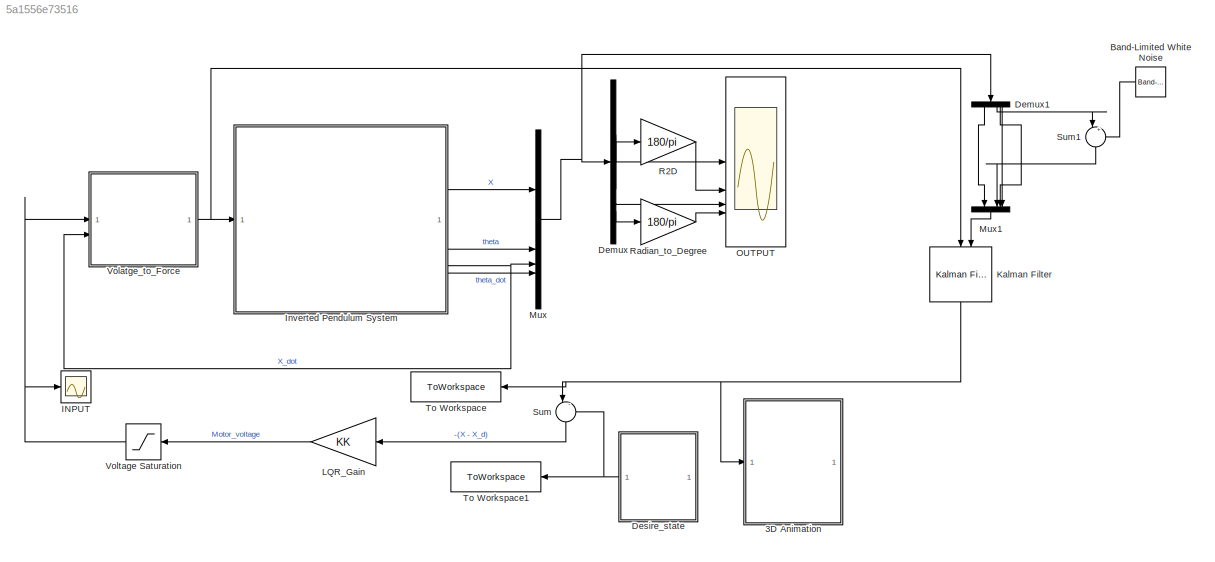
MODEL slx_5a1556e73516
KIND model
CONFIG AbsTol = auto
CONFIG EnableMultiTasking = off
CONFIG FixedStep = 0.01
CONFIG MaxStep = auto
CONFIG MinStep = auto
CONFIG RelTol = 1e-3
CONFIG SampleTimeConstraint = Unconstrained
CONFIG SolverName = FixedStepAuto
CONFIG StartTime = 0.0
CONFIG StopTime = 300
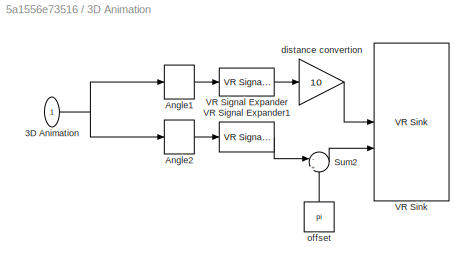
BLOCK [SubSystem] 3D Animation
BLOCK [Inport] 3D Animation/3D Animation
BLOCK [Selector] 3D Animation/Angle1
  IndexOptions = Index vector (dialog)
  Indices = [1]
  InputPortWidth = 4
  OutputSizes = 1
BLOCK [Selector] 3D Animation/Angle2
  IndexOptions = Index vector (dialog)
  Indices = [2]
  InputPortWidth = 4
  OutputSizes = 1
BLOCK [Sum] 3D Animation/Sum2
  Inputs = -|+
BLOCK [Reference] 3D Animation/VR Signal Expander  REF=vrlib/VR Signal Expander
  SourceBlock = vrlib/VR Signal Expander
  SourceType = VR Signal Expander
BLOCK [Reference] 3D Animation/VR Signal Expander1  REF=vrlib/VR Signal Expander
  SourceBlock = vrlib/VR Signal Expander
  SourceType = VR Signal Expander
BLOCK [Reference] 3D Animation/VR Sink  REF=vrlib/VR Sink
  InstantiateOnLoad = on
  SourceBlock = vrlib/VR Sink
  SourceType = Virtual Reality Sink
BLOCK [Gain] 3D Animation/distance convertion
  Gain = 10
BLOCK [Constant] 3D Animation/offset
  NameLocation = right
  Value = pi
BLOCK [Reference] Band-Limited White Noise  REF=simulink/Sources/Band-Limited
White Noise
  SourceBlock = simulink/Sources/Band-Limited\nWhite Noise
  SourceType = Band-Limited White Noise.
BLOCK [Demux] Demux
BLOCK [Demux] Demux1
  NameLocation = left
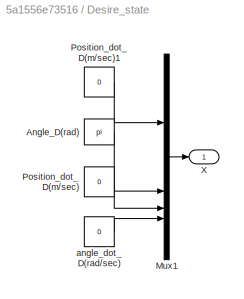
BLOCK [SubSystem] Desire_state
  NameLocation = top
BLOCK [Constant] Desire_state/Angle_D(rad)
  Value = pi
BLOCK [Mux] Desire_state/Mux1
  DisplayOption = bar
BLOCK [Constant] Desire_state/Position_dot_D(m//sec)
  Value = 0
BLOCK [Constant] Desire_state/Position_dot_D(m//sec)1
  Value = 0
BLOCK [Outport] Desire_state/X
  VectorParamsAs1DForOutWhenUnconnected = off
BLOCK [Constant] Desire_state/angle_dot_D(rad//sec)
  Value = 0
BLOCK [Scope] INPUT
  Floating = off
  NumInputPorts = 1
  ScopeSpecificationString = Simulink.scopes.TimeScopeBlockCfg('CurrentConfiguration', extmgr.ConfigurationSet(extmgr.Configuration('Core','General UI',true),extmgr.Configuration('Core','Source UI',true),extmgr.Configuration('Sources','WiredSimulink',true),extmgr.Configuration('Visuals','Time Domain',true,'SerializedDisplays',{struct('MinYLimReal','-15.00000','MaxYLimReal','15.00000','YLabelReal','','MinYLimMag','0.00000','Ma...<+1345ch>
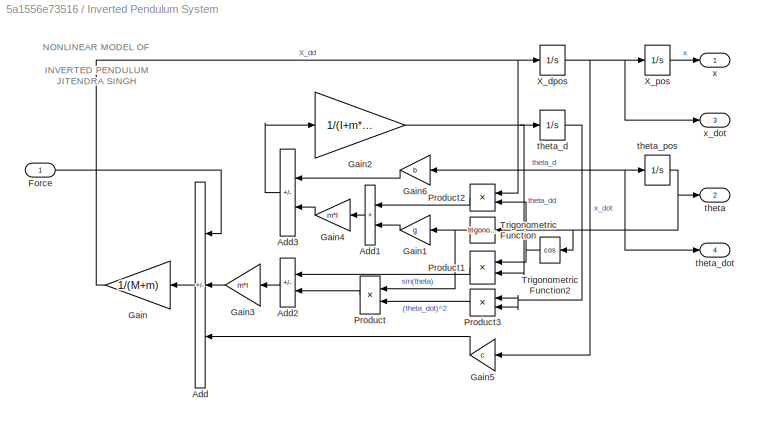
BLOCK [SubSystem] Inverted Pendulum System
BLOCK [Sum] Inverted Pendulum System/Add
  IconShape = rectangular
  Inputs = ++-
  NameLocation = top
BLOCK [Sum] Inverted Pendulum System/Add1
  IconShape = rectangular
  NameLocation = top
BLOCK [Sum] Inverted Pendulum System/Add2
  IconShape = rectangular
  Inputs = -+
  NameLocation = top
BLOCK [Sum] Inverted Pendulum System/Add3
  IconShape = rectangular
  Inputs = --
  NameLocation = top
BLOCK [Inport] Inverted Pendulum System/Force
BLOCK [Gain] Inverted Pendulum System/Gain
  Gain = 1/(M+m)
  NameLocation = top
BLOCK [Gain] Inverted Pendulum System/Gain1
  Gain = g
  NameLocation = top
BLOCK [Gain] Inverted Pendulum System/Gain2
  Gain = 1/(I+m*(l^2))
BLOCK [Gain] Inverted Pendulum System/Gain3
  Gain = m*l
  NameLocation = top
BLOCK [Gain] Inverted Pendulum System/Gain4
  Gain = m*l
  NameLocation = top
BLOCK [Gain] Inverted Pendulum System/Gain5
  Gain = c
  NameLocation = top
BLOCK [Gain] Inverted Pendulum System/Gain6
  Gain = b
  NameLocation = top
BLOCK [Product] Inverted Pendulum System/Product
  NameLocation = top
BLOCK [Product] Inverted Pendulum System/Product1
  NameLocation = top
BLOCK [Product] Inverted Pendulum System/Product2
  NameLocation = top
BLOCK [Product] Inverted Pendulum System/Product3
  NameLocation = top
BLOCK [Trigonometry] Inverted Pendulum System/Trigonometric Function
  NameLocation = top
BLOCK [Trigonometry] Inverted Pendulum System/Trigonometric Function2
  NameLocation = top
  Operator = cos
BLOCK [Integrator] Inverted Pendulum System/X_dpos
BLOCK [Integrator] Inverted Pendulum System/X_pos
  InitialCondition = 0.2
BLOCK [Outport] Inverted Pendulum System/theta
  Port = 2
  VectorParamsAs1DForOutWhenUnconnected = off
BLOCK [Integrator] Inverted Pendulum System/theta_d
BLOCK [Outport] Inverted Pendulum System/theta_dot
  Port = 4
  VectorParamsAs1DForOutWhenUnconnected = off
BLOCK [Integrator] Inverted Pendulum System/theta_pos
  InitialCondition = 160*(pi/180)
BLOCK [Outport] Inverted Pendulum System/x
  VectorParamsAs1DForOutWhenUnconnected = off
BLOCK [Outport] Inverted Pendulum System/x_dot
  Port = 3
  VectorParamsAs1DForOutWhenUnconnected = off
BLOCK [Reference] Kalman Filter  REF=ctrlSharedLib/Kalman Filter
  LibrarySourceBlock = cstblocks/State Estimation/Kalman Filter
  NameLocation = left
  SourceBlock = ctrlSharedLib/Kalman Filter
  SourceType = ctrlKalmanFilter
BLOCK [Gain] LQR_Gain
  Gain = KK
  Multiplication = Matrix(K*u)
  NameLocation = top
BLOCK [Mux] Mux
  DisplayOption = bar
BLOCK [Mux] Mux1
  DisplayOption = bar
  NameLocation = left
BLOCK [Scope] OUTPUT
  Floating = off
  NumInputPorts = 4
  ScopeSpecificationString = Simulink.scopes.TimeScopeBlockCfg('CurrentConfiguration', extmgr.ConfigurationSet(extmgr.Configuration('Core','General UI',true,'FigureColor',[1 1 1]),extmgr.Configuration('Core','Source UI',true),extmgr.Configuration('Sources','WiredSimulink',true,'DataLoggingVariableName','ScopeData1'),extmgr.Configuration('Visuals','Time Domain',true,'SerializedDisplays',{struct('MinYLimReal','-1.27595','MaxYLi...<+3981ch>
BLOCK [Gain] R2D
  Gain = 180/pi
BLOCK [Gain] Radian_to_Degree
  Gain = 180/pi
BLOCK [Sum] Sum
  Inputs = |-+
  NameLocation = left
BLOCK [Sum] Sum1
  Inputs = |++
  NameLocation = left
BLOCK [ToWorkspace] To Workspace
  FixptAsFi = on
  MaxDataPoints = inf
  SampleTime = -1
  SaveFormat = Timeseries
  VariableName = realState
BLOCK [ToWorkspace] To Workspace1
  FixptAsFi = on
  MaxDataPoints = inf
  SampleTime = -1
  SaveFormat = Timeseries
  VariableName = desiredState
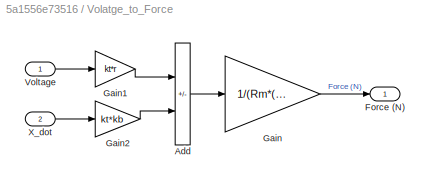
BLOCK [SubSystem] Volatge_to_Force
BLOCK [Sum] Volatge_to_Force/Add
  IconShape = rectangular
  Inputs = +-
BLOCK [Outport] Volatge_to_Force/Force (N)
  VectorParamsAs1DForOutWhenUnconnected = off
BLOCK [Gain] Volatge_to_Force/Gain
  Gain = 1/(Rm*(r)^2)
BLOCK [Gain] Volatge_to_Force/Gain1
  Gain = kt*r
BLOCK [Gain] Volatge_to_Force/Gain2
  Gain = kt*kb
BLOCK [Inport] Volatge_to_Force/Voltage
  NameLocation = top
BLOCK [Inport] Volatge_to_Force/X_dot
  Port = 2
BLOCK [Saturate] Voltage Saturation
  LowerLimit = -12
  NameLocation = top
  UpperLimit = 12
ANNOTATION Inverted Pendulum System: NONLINEAR MODEL OF INVERTED PENDULUM JITENDRA SINGH
NET 3D Animation/3D Animation:1 -> 3D Animation/Angle1:1, 3D Animation/Angle2:1
LINE 3D Animation/Angle1:1 -> 3D Animation/VR Signal Expander:1
LINE 3D Animation/Angle2:1 -> 3D Animation/VR Signal Expander1:1
LINE 3D Animation/Sum2:1 -> 3D Animation/VR Sink:2
LINE 3D Animation/VR Signal Expander1:1 -> 3D Animation/Sum2:1
LINE 3D Animation/VR Signal Expander:1 -> 3D Animation/distance convertion:1
LINE 3D Animation/distance convertion:1 -> 3D Animation/VR Sink:1
LINE 3D Animation/offset:1 -> 3D Animation/Sum2:2
LINE Band-Limited White Noise:1 -> Sum1:2
LINE Demux1:1 -> Mux1:1
LINE Demux1:2 -> Sum1:1
LINE Demux1:3 -> Mux1:3
LINE Demux1:4 -> Mux1:4
LINE Demux:1 -> OUTPUT:1
LINE Demux:2 -> R2D:1
LINE Demux:3 -> OUTPUT:3
LINE Demux:4 -> Radian_to_Degree:1
LINE Desire_state/Angle_D(rad):1 -> Desire_state/Mux1:2
LINE Desire_state/Mux1:1 -> Desire_state/X:1
LINE Desire_state/Position_dot_D(m//sec)1:1 -> Desire_state/Mux1:1
LINE Desire_state/Position_dot_D(m//sec):1 -> Desire_state/Mux1:3
LINE Desire_state/angle_dot_D(rad//sec):1 -> Desire_state/Mux1:4
NET Desire_state:1 -> Sum:2, To Workspace1:1
LINE Inverted Pendulum System/Add1:1 -> Inverted Pendulum System/Gain4:1
LINE Inverted Pendulum System/Add2:1 -> Inverted Pendulum System/Gain3:1
LINE Inverted Pendulum System/Add3:1 -> Inverted Pendulum System/Gain2:1
LINE Inverted Pendulum System/Add:1 -> Inverted Pendulum System/Gain:1
LINE Inverted Pendulum System/Force:1 -> Inverted Pendulum System/Add:1
LINE Inverted Pendulum System/Gain1:1 -> Inverted Pendulum System/Add1:2
NET Inverted Pendulum System/Gain2:1 -> Inverted Pendulum System/Product1:2, Inverted Pendulum System/theta_d:1
LINE Inverted Pendulum System/Gain3:1 -> Inverted Pendulum System/Add:2
LINE Inverted Pendulum System/Gain4:1 -> Inverted Pendulum System/Add3:2
LINE Inverted Pendulum System/Gain5:1 -> Inverted Pendulum System/Add:3
LINE Inverted Pendulum System/Gain6:1 -> Inverted Pendulum System/Add3:1
NET Inverted Pendulum System/Gain:1 -> Inverted Pendulum System/Product2:1, Inverted Pendulum System/X_dpos:1
LINE Inverted Pendulum System/Product1:1 -> Inverted Pendulum System/Add2:1
LINE Inverted Pendulum System/Product2:1 -> Inverted Pendulum System/Add1:1
LINE Inverted Pendulum System/Product3:1 -> Inverted Pendulum System/Product:2
LINE Inverted Pendulum System/Product:1 -> Inverted Pendulum System/Add2:2
NET Inverted Pendulum System/Trigonometric Function2:1 -> Inverted Pendulum System/Product1:1, Inverted Pendulum System/Product2:2
NET Inverted Pendulum System/Trigonometric Function:1 -> Inverted Pendulum System/Gain1:1, Inverted Pendulum System/Product:1
NET Inverted Pendulum System/X_dpos:1 -> Inverted Pendulum System/Gain5:1, Inverted Pendulum System/X_pos:1, Inverted Pendulum System/x_dot:1
LINE Inverted Pendulum System/X_pos:1 -> Inverted Pendulum System/x:1
NET Inverted Pendulum System/theta_d:1 -> Inverted Pendulum System/Gain6:1, Inverted Pendulum System/Product3:1, Inverted Pendulum System/Product3:2, Inverted Pendulum System/theta_dot:1, Inverted Pendulum System/theta_pos:1
NET Inverted Pendulum System/theta_pos:1 -> Inverted Pendulum System/Trigonometric Function2:1, Inverted Pendulum System/Trigonometric Function:1, Inverted Pendulum System/theta:1
LINE Inverted Pendulum System:1 -> Mux:1
LINE Inverted Pendulum System:2 -> Mux:2
NET Inverted Pendulum System:3 -> Mux:3, Volatge_to_Force:2
LINE Inverted Pendulum System:4 -> Mux:4
NET Kalman Filter:1 -> 3D Animation:1, Sum:1, To Workspace:1
LINE LQR_Gain:1 -> Voltage Saturation:1
LINE Mux1:1 -> Kalman Filter:2
NET Mux:1 -> Demux1:1, Demux:1
LINE R2D:1 -> OUTPUT:2
LINE Radian_to_Degree:1 -> OUTPUT:4
LINE Sum1:1 -> Mux1:2
LINE Sum:1 -> LQR_Gain:1
LINE Volatge_to_Force/Add:1 -> Volatge_to_Force/Gain:1
LINE Volatge_to_Force/Gain1:1 -> Volatge_to_Force/Add:1
LINE Volatge_to_Force/Gain2:1 -> Volatge_to_Force/Add:2
LINE Volatge_to_Force/Gain:1 -> Volatge_to_Force/Force (N):1
LINE Volatge_to_Force/Voltage:1 -> Volatge_to_Force/Gain1:1
LINE Volatge_to_Force/X_dot:1 -> Volatge_to_Force/Gain2:1
NET Volatge_to_Force:1 -> Inverted Pendulum System:1, Kalman Filter:1
NET Voltage Saturation:1 -> INPUT:1, Volatge_to_Force:1
note: NET lines group one-source signal fan-out (src -> all destinations, sorted); 1:1 wires keep LINE
